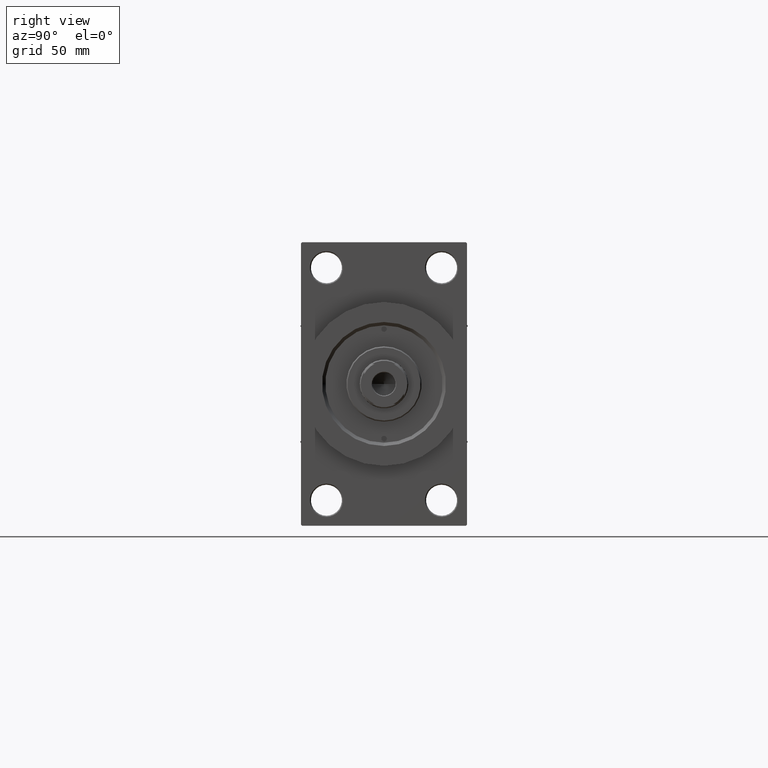
[diagram: clean part render]
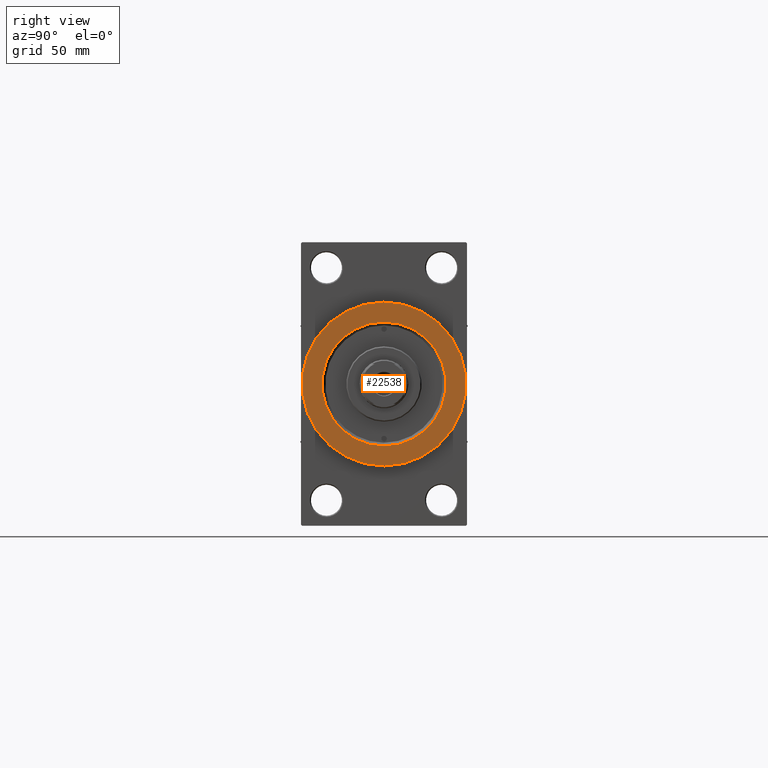
[diagram: same view with one face highlighted and labeled with its STEP entity id]
A machine part, right view. The second image highlights one B-rep face of the part: STEP entity #22538.
In plain terms, the highlighted planar face has unit normal (1, 0, 0).
Its self-contained STEP definition (entity closure, byte-faithful):
#1596 = VERTEX_POINT ( 'NONE', #22066 ) ;
#4397 = FACE_OUTER_BOUND ( 'NONE', #30626, .T. ) ;
#6061 = EDGE_CURVE ( 'NONE', #42917, #1596, #37293, .T. ) ;
#7528 = DIRECTION ( 'NONE',  ( 1.000000000000000000, 0.000000000000000000, 0.000000000000000000 ) ) ;
#8505 = CARTESIAN_POINT ( 'NONE',  ( 254.0000000000000000, 3.429011037612588881E-15, 27.99999999999999645 ) ) ;
#11127 = FACE_BOUND ( 'NONE', #40248, .T. ) ;
#11362 = CARTESIAN_POINT ( 'NONE',  ( 254.0000000000000000, 0.000000000000000000, 0.000000000000000000 ) ) ;
#12033 = CARTESIAN_POINT ( 'NONE',  ( 254.0000000000000000, 0.000000000000000000, 37.00000000000000000 ) ) ;
#12186 = CIRCLE ( 'NONE', #31299, 27.99999999999999645 ) ;
#13932 = ORIENTED_EDGE ( 'NONE', *, *, #6061, .T. ) ;
#15144 = ORIENTED_EDGE ( 'NONE', *, *, #35296, .T. ) ;
#15183 = DIRECTION ( 'NONE',  ( 0.000000000000000000, 0.000000000000000000, -1.000000000000000000 ) ) ;
#15328 = AXIS2_PLACEMENT_3D ( 'NONE', #36264, #17334, #39860 ) ;
#17334 = DIRECTION ( 'NONE',  ( 1.000000000000000000, 0.000000000000000000, 0.000000000000000000 ) ) ;
#18007 = DIRECTION ( 'NONE',  ( 0.000000000000000000, 0.000000000000000000, -1.000000000000000000 ) ) ;
#21686 = DIRECTION ( 'NONE',  ( 0.000000000000000000, 0.000000000000000000, -1.000000000000000000 ) ) ;
#21945 = EDGE_CURVE ( 'NONE', #28215, #43900, #27261, .T. ) ;
#22066 = CARTESIAN_POINT ( 'NONE',  ( 254.0000000000000000, 0.000000000000000000, -27.99999999999999645 ) ) ;
#22132 = PLANE ( 'NONE',  #39550 ) ;
#22538 = ADVANCED_FACE ( 'NONE', ( #11127, #4397 ), #22132, .T. ) ;
#26810 = CIRCLE ( 'NONE', #15328, 37.00000000000000000 ) ;
#27261 = CIRCLE ( 'NONE', #36479, 37.00000000000000000 ) ;
#28215 = VERTEX_POINT ( 'NONE', #12033 ) ;
#28681 = EDGE_CURVE ( 'NONE', #1596, #42917, #12186, .T. ) ;
#29136 = DIRECTION ( 'NONE',  ( -1.000000000000000000, -0.000000000000000000, -0.000000000000000000 ) ) ;
#29281 = CARTESIAN_POINT ( 'NONE',  ( 254.0000000000000000, 0.000000000000000000, 0.000000000000000000 ) ) ;
#30313 = DIRECTION ( 'NONE',  ( -1.000000000000000000, -0.000000000000000000, -0.000000000000000000 ) ) ;
#30626 = EDGE_LOOP ( 'NONE', ( #33049, #15144 ) ) ;
#30907 = ORIENTED_EDGE ( 'NONE', *, *, #28681, .T. ) ;
#31299 = AXIS2_PLACEMENT_3D ( 'NONE', #46635, #29136, #21686 ) ;
#33049 = ORIENTED_EDGE ( 'NONE', *, *, #21945, .T. ) ;
#35296 = EDGE_CURVE ( 'NONE', #43900, #28215, #26810, .T. ) ;
#36264 = CARTESIAN_POINT ( 'NONE',  ( 254.0000000000000000, 0.000000000000000000, 0.000000000000000000 ) ) ;
#36479 = AXIS2_PLACEMENT_3D ( 'NONE', #29281, #43906, #18007 ) ;
#37293 = CIRCLE ( 'NONE', #44183, 27.99999999999999645 ) ;
#39550 = AXIS2_PLACEMENT_3D ( 'NONE', #11362, #7528, #15183 ) ;
#39860 = DIRECTION ( 'NONE',  ( 0.000000000000000000, 0.000000000000000000, -1.000000000000000000 ) ) ;
#40248 = EDGE_LOOP ( 'NONE', ( #30907, #13932 ) ) ;
#41578 = CARTESIAN_POINT ( 'NONE',  ( 254.0000000000000000, 4.531193156845206793E-15, -37.00000000000000000 ) ) ;
#42917 = VERTEX_POINT ( 'NONE', #8505 ) ;
#43900 = VERTEX_POINT ( 'NONE', #41578 ) ;
#43906 = DIRECTION ( 'NONE',  ( 1.000000000000000000, 0.000000000000000000, 0.000000000000000000 ) ) ;
#44183 = AXIS2_PLACEMENT_3D ( 'NONE', #45415, #30313, #45181 ) ;
#45181 = DIRECTION ( 'NONE',  ( 0.000000000000000000, 0.000000000000000000, -1.000000000000000000 ) ) ;
#45415 = CARTESIAN_POINT ( 'NONE',  ( 254.0000000000000000, 0.000000000000000000, 0.000000000000000000 ) ) ;
#46635 = CARTESIAN_POINT ( 'NONE',  ( 254.0000000000000000, 0.000000000000000000, 0.000000000000000000 ) ) ;